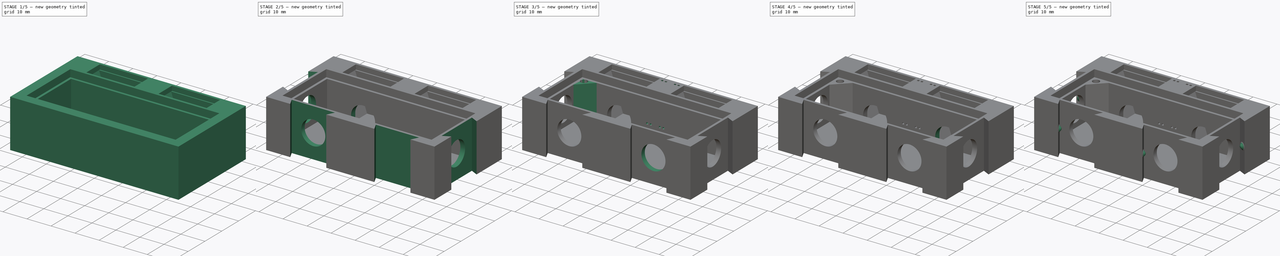
[diagram: build sequence overview — one tinted view per stage of 5, left to right]
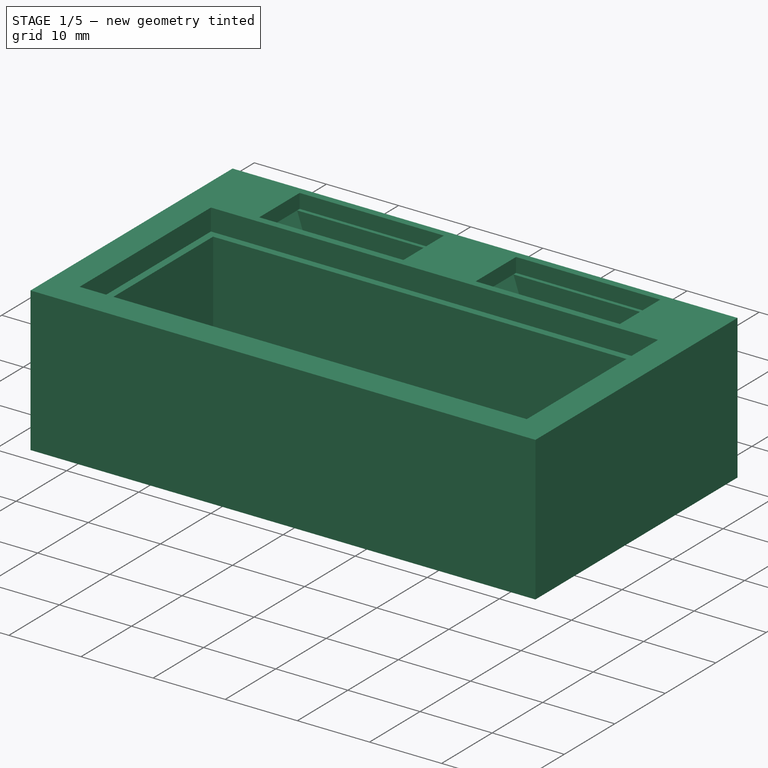
[diagram: stage 1 of 5 — iso view after this stage's code; geometry added in this stage tinted green]
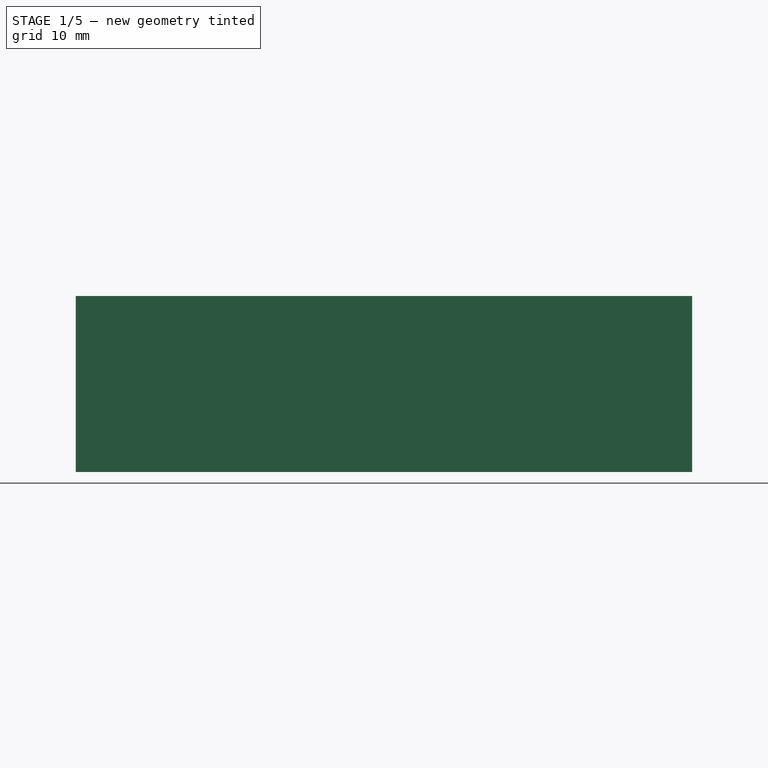
[diagram: stage 1 of 5 — front view after this stage's code; geometry added in this stage tinted green]
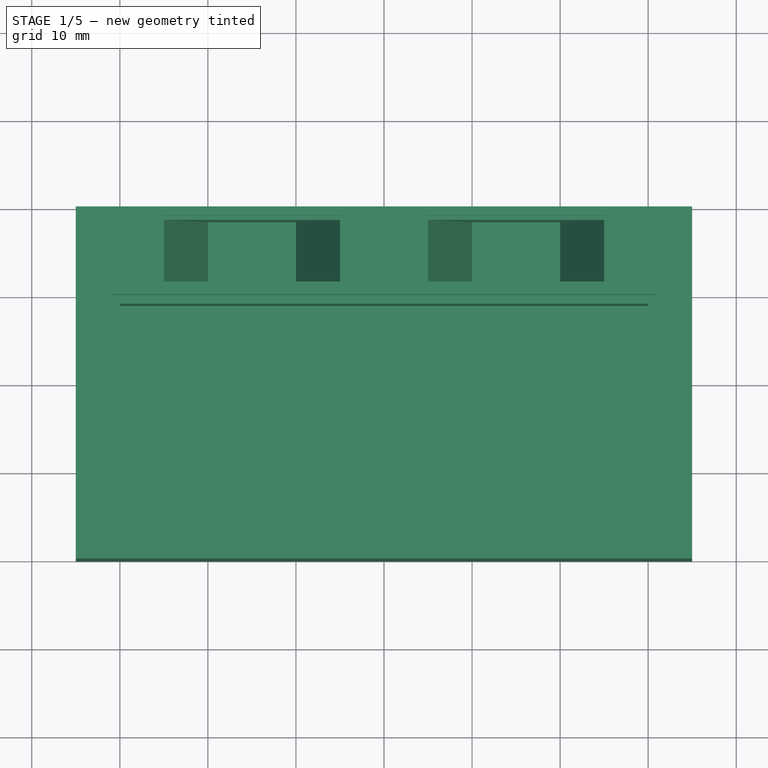
[diagram: stage 1 of 5 — top view after this stage's code; geometry added in this stage tinted green]
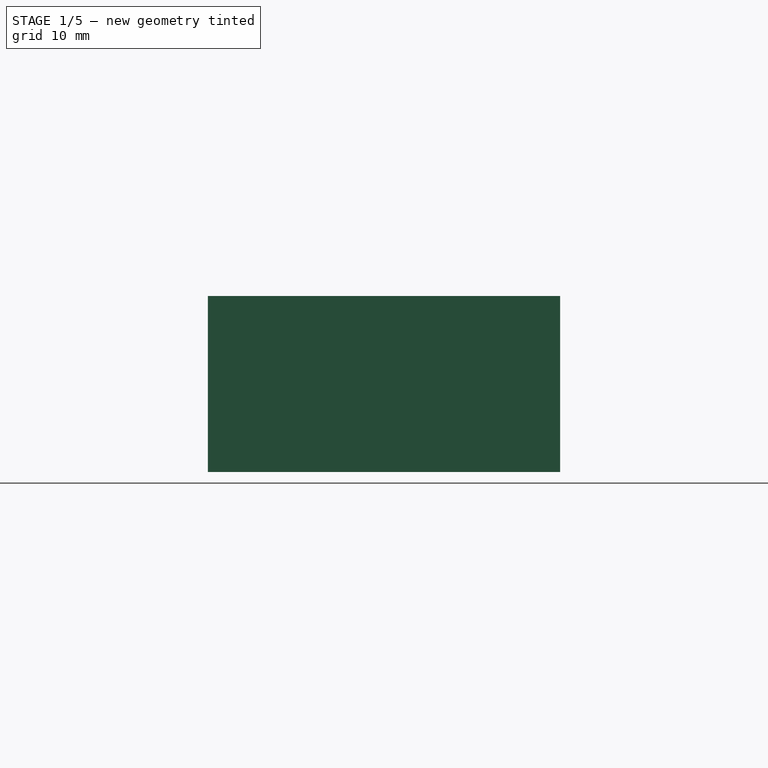
[diagram: stage 1 of 5 — right view after this stage's code; geometry added in this stage tinted green]
FCSTD DOCUMENT  (FreeCAD 0.18R4 (GitTag))
Label: CV2_Portal
License: All rights reserved
LicenseURL: http://en.wikipedia.org/wiki/All_rights_reserved
objects: Sketcher::SketchObject×23, PartDesign::Pocket×11, PartDesign::Mirrored×9, PartDesign::Plane×8, PartDesign::Revolution×4, PartDesign::Pad×3, PartDesign::SubtractiveLoft×2, PartDesign::Groove×1, PartDesign::Body×1
note: 83 computed .brp shape members not serialized (recipe doc carries the construction recipe); baked Part::Feature solids carry a one-line shape summary decoded from their .brp

FEATURE [Sketcher::SketchObject] Sketch
  MapMode = 5
  Support = -> [XY_Plane]
  sketch-geometry (4):
    g0: LineSegment StartX=-35 StartY=20 StartZ=0 EndX=35 EndY=20 EndZ=0
    g1: LineSegment StartX=35 StartY=20 StartZ=0 EndX=35 EndY=-20 EndZ=0
    g2: LineSegment StartX=35 StartY=-20 StartZ=0 EndX=-35 EndY=-20 EndZ=0
    g3: LineSegment StartX=-35 StartY=-20 StartZ=0 EndX=-35 EndY=20 EndZ=0
  constraints (10):
    c: Coincident(g0,g1)
    c: Coincident(g1,g2)
    c: Coincident(g2,g3)
    c: Coincident(g3,g0)
    c: DistanceX(g0,g0) = 70
    c: DistanceY(g3,g3) = 40
    c: Symmetric(g0,g1,g-1)
    c: Symmetric(g1,g2,g-2)
    c: Equal(g2,g0)
    c: Equal(g3,g1)
FEATURE [PartDesign::Pad] Pad  label="Main Body"
  Length = 20
  Length2 = 100
  Profile = -> Sketch
  Type = 0
FEATURE [PartDesign::Plane] DatumPlane
  Length = 80.583
  MapMode = 5
  Placement = pos=(0,0,20) rot=(0,0,1;0rad)
  ResizeMode = 0
  Support = -> [Pad]
  Width = 50.583
FEATURE [Sketcher::SketchObject] Sketch001
  ExternalGeometry = -> [Pad]
  MapMode = 5
  Placement = pos=(0,0,20) rot=(0,0,1;0rad)
  Support = -> [DatumPlane]
  sketch-geometry (4):
    g0: LineSegment StartX=-31 StartY=10 StartZ=0 EndX=31 EndY=10 EndZ=0
    g1: LineSegment StartX=31 StartY=10 StartZ=0 EndX=31 EndY=-16 EndZ=0
    g2: LineSegment StartX=31 StartY=-16 StartZ=0 EndX=-31 EndY=-16 EndZ=0
    g3: LineSegment StartX=-31 StartY=-16 StartZ=0 EndX=-31 EndY=10 EndZ=0
  constraints (11):
    c: Coincident(g0,g1)
    c: Coincident(g1,g2)
    c: Coincident(g2,g3)
    c: Coincident(g3,g0)
    c: Vertical(g1)
    c: Vertical(g3)
    c: DistanceY(g1,g1) = 26
    c: Symmetric(g2,g1,g-2)
    c: DistanceY(g-3,g2) = 4
    c: DistanceX(g-3,g0) = 4
    c: Equal(g3,g1)
FEATURE [PartDesign::Pocket] Pocket  label="Room"
  BaseFeature = -> Pad
  Length = 3
  Length2 = 100
  Profile = -> Sketch001
  Type = 0
FEATURE [Sketcher::SketchObject] Sketch002
  ExternalGeometry = -> [Pocket]
  MapMode = 5
  Placement = pos=(0,0,20) rot=(0,0,1;0rad)
  Support = -> [DatumPlane]
  sketch-geometry (8):
    g0: LineSegment StartX=-25 StartY=19 StartZ=0 EndX=-5 EndY=19 EndZ=0
    g1: LineSegment StartX=-5 StartY=19 StartZ=0 EndX=-5 EndY=11 EndZ=0
    g2: LineSegment StartX=-5 StartY=11 StartZ=0 EndX=-25 EndY=11 EndZ=0
    g3: LineSegment StartX=-25 StartY=11 StartZ=0 EndX=-25 EndY=19 EndZ=0
    g4: LineSegment StartX=5 StartY=19 StartZ=0 EndX=25 EndY=19 EndZ=0
    g5: LineSegment StartX=25 StartY=19 StartZ=0 EndX=25 EndY=11 EndZ=0
    g6: LineSegment StartX=25 StartY=11 StartZ=0 EndX=5 EndY=11 EndZ=0
    g7: LineSegment StartX=5 StartY=11 StartZ=0 EndX=5 EndY=19 EndZ=0
  constraints (23):
    c: Coincident(g0,g1)
    c: Coincident(g1,g2)
    c: Coincident(g2,g3)
    c: Coincident(g3,g0)
    c: Horizontal(g0)
    c: Horizontal(g2)
    c: Vertical(g1)
    c: Vertical(g3)
    c: Coincident(g4,g5)
    c: Coincident(g5,g6)
    c: Coincident(g6,g7)
    c: Coincident(g7,g4)
    c: Horizontal(g4)
    c: Horizontal(g6)
    c: Vertical(g5)
    c: Vertical(g7)
    c: DistanceX(g1,g-1) = 5
    c: Symmetric(g6,g1,g-2)
    c: DistanceX(g2,g2) = 20
    c: DistanceY(g3,g3) = 8
    c: DistanceY(g-3,g2) = 1
    c: Equal(g2,g6)
    c: Equal(g3,g5)
FEATURE [PartDesign::Pocket] Pocket001  label="Feeder Holes"
  BaseFeature = -> Pocket
  Length = 2
  Length2 = 100
  Profile = -> Sketch002
  Type = 0
FEATURE [PartDesign::Plane] DatumPlane001
  Length = 80.583
  MapMode = 5
  Placement = pos=(0,0,17) rot=(0,0,1;0rad)
  ResizeMode = 0
  Support = -> [Pocket001]
  Width = 50.583
FEATURE [Sketcher::SketchObject] Sketch003
  ExternalGeometry = -> [Pocket001]
  MapMode = 5
  Placement = pos=(0,0,17) rot=(0,0,1;0rad)
  Support = -> [DatumPlane001]
  sketch-geometry (4):
    g0: LineSegment StartX=-30 StartY=9 StartZ=0 EndX=30 EndY=9 EndZ=0
    g1: LineSegment StartX=30 StartY=9 StartZ=0 EndX=30 EndY=-15 EndZ=0
    g2: LineSegment StartX=30 StartY=-15 StartZ=0 EndX=-30 EndY=-15 EndZ=0
    g3: LineSegment StartX=-30 StartY=-15 StartZ=0 EndX=-30 EndY=9 EndZ=0
  constraints (12):
    c: Coincident(g0,g1)
    c: Coincident(g1,g2)
    c: Coincident(g2,g3)
    c: Coincident(g3,g0)
    c: Horizontal(g0)
    c: Horizontal(g2)
    c: Vertical(g1)
    c: Vertical(g3)
    c: DistanceY(g-3,g2) = 1
    c: DistanceX(g1,g-4) = 1
    c: DistanceY(g0,g-4) = 1
    c: DistanceX(g-3,g2) = 1
FEATURE [PartDesign::Pocket] Pocket002  label="RoomHole"
  BaseFeature = -> Pocket001
  Length = 14
  Length2 = 100
  Profile = -> Sketch003
  Type = 0
FEATURE [PartDesign::Plane] DatumPlane003
  Length = 80.583
  MapMode = 5
  Placement = pos=(0,0,18) rot=(0,0,1;0rad)
  ResizeMode = 0
  Support = -> [Pocket002]
  Width = 50.583
FEATURE [Sketcher::SketchObject] Sketch004
  ExternalGeometry = -> [Pocket002]
  MapMode = 5
  Placement = pos=(0,0,18) rot=(0,0,1;0rad)
  Support = -> [DatumPlane003]
  sketch-geometry (4):
    g0: LineSegment StartX=-25 StartY=18.5 StartZ=0 EndX=-5 EndY=18.5 EndZ=0
    g1: LineSegment StartX=-5 StartY=18.5 StartZ=0 EndX=-5 EndY=11.5 EndZ=0
    g2: LineSegment StartX=-5 StartY=11.5 StartZ=0 EndX=-25 EndY=11.5 EndZ=0
    g3: LineSegment StartX=-25 StartY=11.5 StartZ=0 EndX=-25 EndY=18.5 EndZ=0
  constraints (12):
    c: Coincident(g0,g1)
    c: Coincident(g1,g2)
    c: Coincident(g2,g3)
    c: Coincident(g3,g0)
    c: Horizontal(g0)
    c: Horizontal(g2)
    c: Vertical(g1)
    c: Vertical(g3)
    c: DistanceY(g-3,g2) = 0.5
    c: DistanceY(g0,g-4) = 0.5
    c: PointOnObject(g1,g-4)
    c: PointOnObject(g2,g-5)
FEATURE [PartDesign::Plane] DatumPlane004
  Length = 80.583
  MapMode = 5
  Placement = pos=(0,0,3) rot=(0,0,1;0rad)
  ResizeMode = 0
  Support = -> [Pocket002]
  Width = 50.583
FEATURE [Sketcher::SketchObject] Sketch005
  ExternalGeometry = -> [Sketch004,Pocket002]
  MapMode = 5
  Placement = pos=(0,0,3) rot=(0,0,1;0rad)
  Support = -> [DatumPlane004]
  sketch-geometry (4):
    g0: LineSegment StartX=-20 StartY=18.5 StartZ=0 EndX=-10 EndY=18.5 EndZ=0
    g1: LineSegment StartX=-10 StartY=18.5 StartZ=0 EndX=-10 EndY=11.5 EndZ=0
    g2: LineSegment StartX=-10 StartY=11.5 StartZ=0 EndX=-20 EndY=11.5 EndZ=0
    g3: LineSegment StartX=-20 StartY=11.5 StartZ=0 EndX=-20 EndY=18.5 EndZ=0
  constraints (12):
    c: Coincident(g0,g1)
    c: Coincident(g1,g2)
    c: Coincident(g2,g3)
    c: Coincident(g3,g0)
    c: Horizontal(g0)
    c: Horizontal(g2)
    c: Vertical(g1)
    c: Vertical(g3)
    c: PointOnObject(g2,g-4)
    c: PointOnObject(g0,g-3)
    c: DistanceX(g1,g-4) = 5
    c: DistanceX(g-4,g2) = 5
FEATURE [PartDesign::SubtractiveLoft] SubtractiveLoft  label="FeederHoleLeft"
  BaseFeature = -> Pocket002
  Closed = false
  Profile = -> Sketch004
  Ruled = false
  Sections = -> [Sketch005]
FEATURE [Sketcher::SketchObject] Sketch006
  ExternalGeometry = -> [SubtractiveLoft]
  MapMode = 5
  Placement = pos=(0,0,18) rot=(0,0,1;0rad)
  Support = -> [DatumPlane003]
  sketch-geometry (4):
    g0: LineSegment StartX=5 StartY=18.5 StartZ=0 EndX=25 EndY=18.5 EndZ=0
    g1: LineSegment StartX=25 StartY=18.5 StartZ=0 EndX=25 EndY=11.5 EndZ=0
    g2: LineSegment StartX=25 StartY=11.5 StartZ=0 EndX=5 EndY=11.5 EndZ=0
    g3: LineSegment StartX=5 StartY=11.5 StartZ=0 EndX=5 EndY=18.5 EndZ=0
  constraints (12):
    c: Coincident(g0,g1)
    c: Coincident(g1,g2)
    c: Coincident(g2,g3)
    c: Coincident(g3,g0)
    c: Horizontal(g0)
    c: Horizontal(g2)
    c: Vertical(g1)
    c: Vertical(g3)
    c: PointOnObject(g2,g-4)
    c: PointOnObject(g0,g-6)
    c: DistanceY(g0,g-5) = 0.5
    c: DistanceY(g-6,g1) = 0.5
FEATURE [Sketcher::SketchObject] Sketch007
  ExternalGeometry = -> [Sketch004,Pocket002,Sketch006]
  MapMode = 5
  Placement = pos=(0,0,3) rot=(0,0,1;0rad)
  Support = -> [DatumPlane004]
  sketch-geometry (4):
    g0: LineSegment StartX=10 StartY=18.5 StartZ=0 EndX=20 EndY=18.5 EndZ=0
    g1: LineSegment StartX=20 StartY=18.5 StartZ=0 EndX=20 EndY=11.5 EndZ=0
    g2: LineSegment StartX=20 StartY=11.5 StartZ=0 EndX=10 EndY=11.5 EndZ=0
    g3: LineSegment StartX=10 StartY=11.5 StartZ=0 EndX=10 EndY=18.5 EndZ=0
  constraints (12):
    c: Coincident(g0,g1)
    c: Coincident(g1,g2)
    c: Coincident(g2,g3)
    c: Coincident(g3,g0)
    c: Horizontal(g0)
    c: Horizontal(g2)
    c: Vertical(g1)
    c: Vertical(g3)
    c: PointOnObject(g0,g-7)
    c: PointOnObject(g1,g-8)
    c: DistanceX(g1,g-8) = 5
    c: DistanceX(g-8,g2) = 5
FEATURE [PartDesign::SubtractiveLoft] SubtractiveLoft001  label="FeederHoleRight"
  BaseFeature = -> SubtractiveLoft
  Closed = false
  Profile = -> Sketch006
  Ruled = false
  Sections = -> [Sketch007]
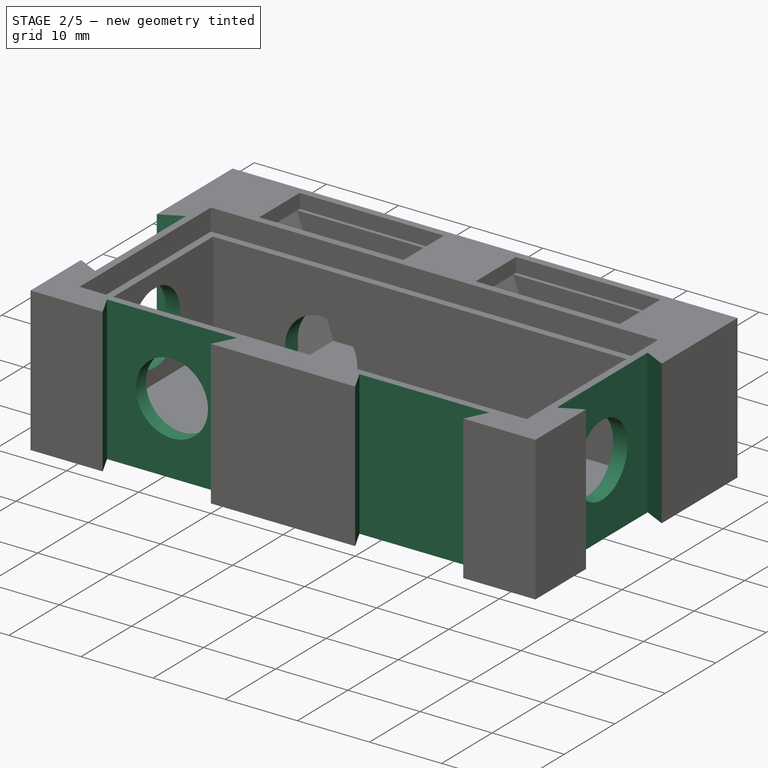
[diagram: stage 2 of 5 — iso view after this stage's code; geometry added in this stage tinted green]
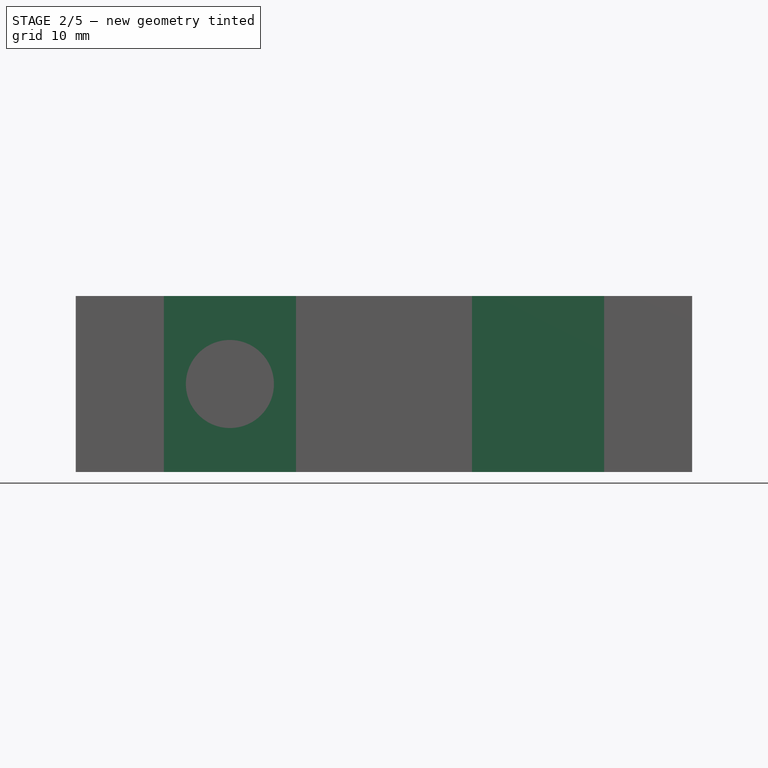
[diagram: stage 2 of 5 — front view after this stage's code; geometry added in this stage tinted green]
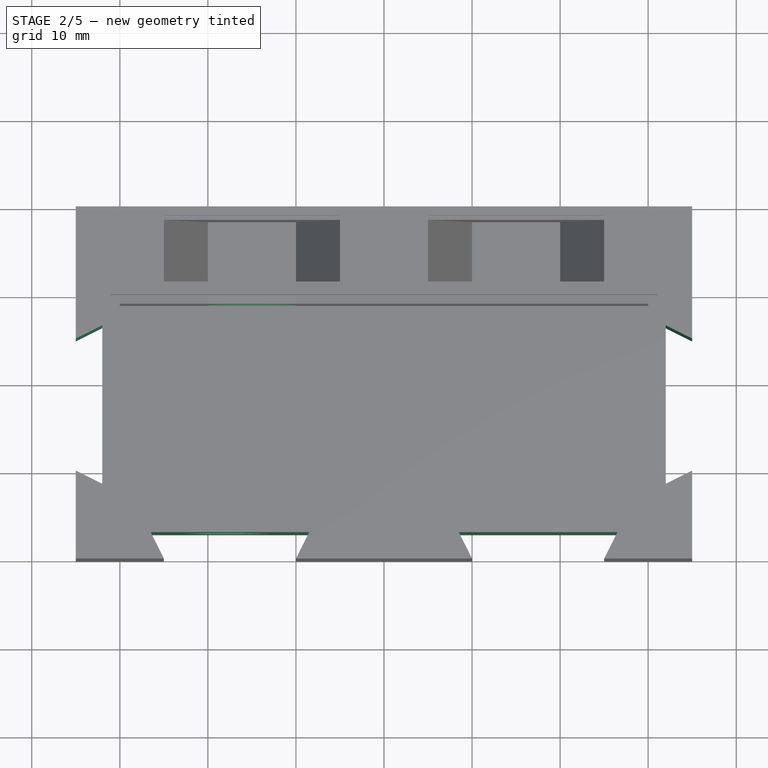
[diagram: stage 2 of 5 — top view after this stage's code; geometry added in this stage tinted green]
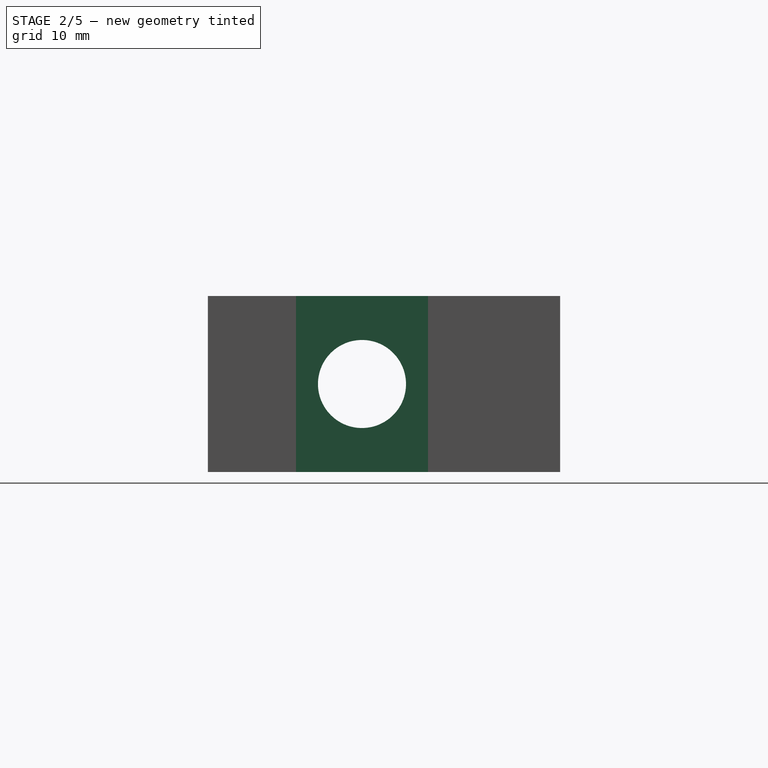
[diagram: stage 2 of 5 — right view after this stage's code; geometry added in this stage tinted green]
FEATURE [Sketcher::SketchObject] Sketch008
  ExternalGeometry = -> [Sketch005]
  MapMode = 5
  Placement = pos=(0,9,0) rot=(1,0,0;1.5708rad)
  Support = -> [SubtractiveLoft001]
  sketch-geometry (4):
    g0: LineSegment StartX=-20 StartY=3 StartZ=0 EndX=-10 EndY=3 EndZ=0
    g1: LineSegment StartX=-20 StartY=3 StartZ=0 EndX=-20 EndY=6 EndZ=0
    g2: LineSegment StartX=-10 StartY=3 StartZ=0 EndX=-10 EndY=6 EndZ=0
    g3: ArcOfCircle CenterX=-15 CenterY=6 CenterZ=0 NormalX=0 NormalY=0 NormalZ=1 AngleXU=0 Radius=5 StartAngle=0 EndAngle=3.14159
  constraints (11):
    c: Coincident(g1,g0)
    c: Vertical(g1)
    c: Coincident(g2,g0)
    c: Vertical(g2)
    c: Coincident(g0,g-3)
    c: Coincident(g-3,g0)
    c: Equal(g1,g2)
    c: DistanceY(g1,g1) = 3
    c: Coincident(g3,g2)
    c: Coincident(g3,g1)
    c: Horizontal(g3,g1)
FEATURE [PartDesign::Pocket] Pocket003
  BaseFeature = -> SubtractiveLoft001
  Length = 3
  Length2 = 100
  Profile = -> Sketch008
  Type = 0
FEATURE [Sketcher::SketchObject] Sketch009
  ExternalGeometry = -> [Pocket003]
  MapMode = 5
  Placement = pos=(0,0,20) rot=(0,0,1;0rad)
  Support = -> [Pocket003]
  sketch-geometry (8):
    g0: LineSegment StartX=-26.5 StartY=-17 StartZ=0 EndX=-8.5 EndY=-17 EndZ=0
    g1: LineSegment StartX=-8.5 StartY=-17 StartZ=0 EndX=-10 EndY=-20 EndZ=0
    g2: LineSegment StartX=-10 StartY=-20 StartZ=0 EndX=-25 EndY=-20 EndZ=0
    g3: LineSegment StartX=-25 StartY=-20 StartZ=0 EndX=-26.5 EndY=-17 EndZ=0
    g4: LineSegment StartX=26.5 StartY=-17 StartZ=0 EndX=8.5 EndY=-17 EndZ=0
    g5: LineSegment StartX=8.5 StartY=-17 StartZ=0 EndX=10 EndY=-20 EndZ=0
    g6: LineSegment StartX=10 StartY=-20 StartZ=0 EndX=25 EndY=-20 EndZ=0
    g7: LineSegment StartX=25 StartY=-20 StartZ=0 EndX=26.5 EndY=-17 EndZ=0
  constraints (26):
    c: Coincident(g0,g1)
    c: Coincident(g1,g2)
    c: Coincident(g2,g3)
    c: Coincident(g3,g0)
    c: Horizontal(g0)
    c: Horizontal(g2)
    c: PointOnObject(g2,g-3)
    c: DistanceX(g2,g2) = 15
    c: DistanceX(g0,g0) = 18
    c: Equal(g3,g1)
    c: DistanceY(g2,g0) = 3
    c: DistanceX(g1,g-1) = 10
    c: Coincident(g4,g5)
    c: Coincident(g5,g6)
    c: Coincident(g6,g7)
    c: Coincident(g7,g4)
    c: Horizontal(g4)
    c: Horizontal(g6)
    c: PointOnObject(g5,g-3)
    c: Equal(g0,g4)
    c: Equal(g2,g6)
    c: DistanceX(g-1,g5) = 10
    c: DistanceX(g6,g-3) = 10
    c: DistanceX(g-3,g2) = 10
    c: Equal(g5,g3)
    c: Equal(g1,g7)
FEATURE [PartDesign::Pocket] Pocket004  label="Connector Pockets"
  BaseFeature = -> Pocket003
  Length = 20
  Length2 = 100
  Profile = -> Sketch009
  Type = 0
FEATURE [Sketcher::SketchObject] Sketch010
  ExternalGeometry = -> [Pocket004]
  MapMode = 5
  Placement = pos=(0,0,20) rot=(0,0,1;0rad)
  Support = -> [Pocket004]
  sketch-geometry (4):
    g0: LineSegment StartX=32 StartY=-11.5 StartZ=0 EndX=35 EndY=-10 EndZ=0
    g1: LineSegment StartX=35 StartY=-10 StartZ=0 EndX=35 EndY=5 EndZ=0
    g2: LineSegment StartX=35 StartY=5 StartZ=0 EndX=32 EndY=6.5 EndZ=0
    g3: LineSegment StartX=32 StartY=6.5 StartZ=0 EndX=32 EndY=-11.5 EndZ=0
  constraints (12):
    c: Coincident(g0,g1)
    c: Coincident(g1,g2)
    c: Coincident(g2,g3)
    c: Coincident(g3,g0)
    c: Vertical(g1)
    c: Vertical(g3)
    c: PointOnObject(g0,g-4)
    c: DistanceY(g0,g1) = 15
    c: DistanceY(g0,g2) = 18
    c: DistanceX(g0,g0) = 3
    c: Equal(g0,g2)
    c: DistanceY(g-4,g0) = 10
FEATURE [PartDesign::Pocket] Pocket005  label="Connector Right"
  BaseFeature = -> Pocket004
  Length = 20
  Length2 = 100
  Profile = -> Sketch010
  Type = 0
FEATURE [PartDesign::Mirrored] Mirrored  label="Connector Left"
  BaseFeature = -> Pocket005
  MirrorPlane = -> Sketch010 [V_Axis]
  Originals = -> [Pocket005]
FEATURE [Sketcher::SketchObject] Sketch011
  MapMode = 5
  Placement = pos=(32,0,0) rot=(0.57735,0.57735,0.57735;2.0944rad)
  Support = -> [Mirrored]
  sketch-geometry (1):
    g0: Circle CenterX=-2.5 CenterY=10 CenterZ=0 NormalX=0 NormalY=0 NormalZ=1 AngleXU=0 Radius=5
  constraints (3):
    c: Diameter(g0) = 10
    c: DistanceY(g-1,g0) = 10
    c: DistanceX(g0,g-1) = 2.5
FEATURE [PartDesign::Pocket] Pocket006  label="ConnectorHole LR"
  BaseFeature = -> Mirrored
  Length = 5
  Length2 = 100
  Profile = -> Sketch011
  Type = 1
FEATURE [Sketcher::SketchObject] Sketch012
  MapMode = 5
  Placement = pos=(0,-17,0) rot=(1,0,0;1.5708rad)
  Support = -> [Pocket006]
  sketch-geometry (1):
    g0: Circle CenterX=-17.5 CenterY=10 CenterZ=0 NormalX=0 NormalY=0 NormalZ=1 AngleXU=0 Radius=5
  constraints (3):
    c: Radius(g0) = 5
    c: DistanceY(g-1,g0) = 10
    c: DistanceX(g0,g-1) = 17.5
FEATURE [PartDesign::Pocket] Pocket007
  BaseFeature = -> Pocket006
  Length = 5
  Length2 = 100
  Profile = -> Sketch012
  Type = 2
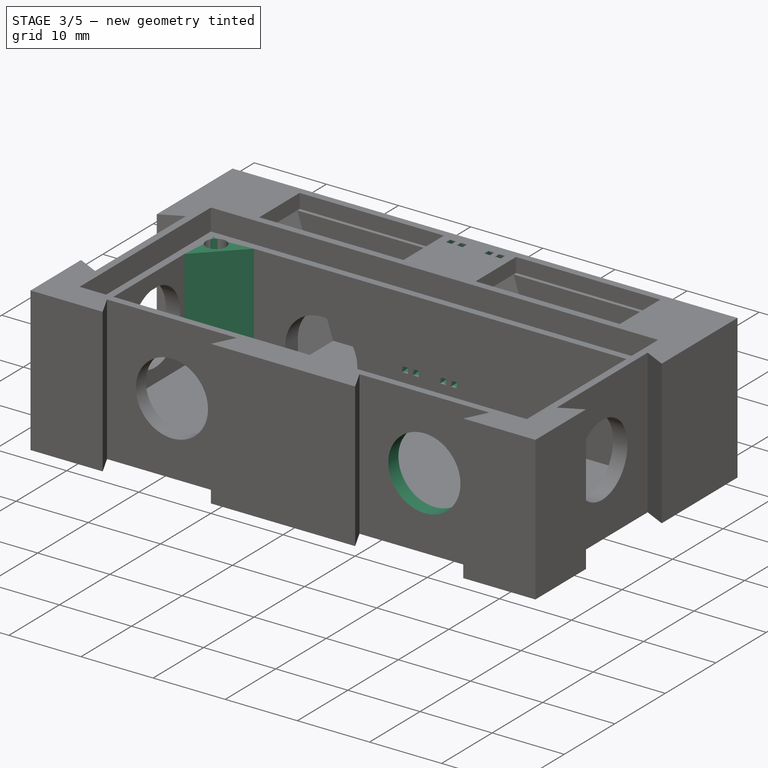
[diagram: stage 3 of 5 — iso view after this stage's code; geometry added in this stage tinted green]
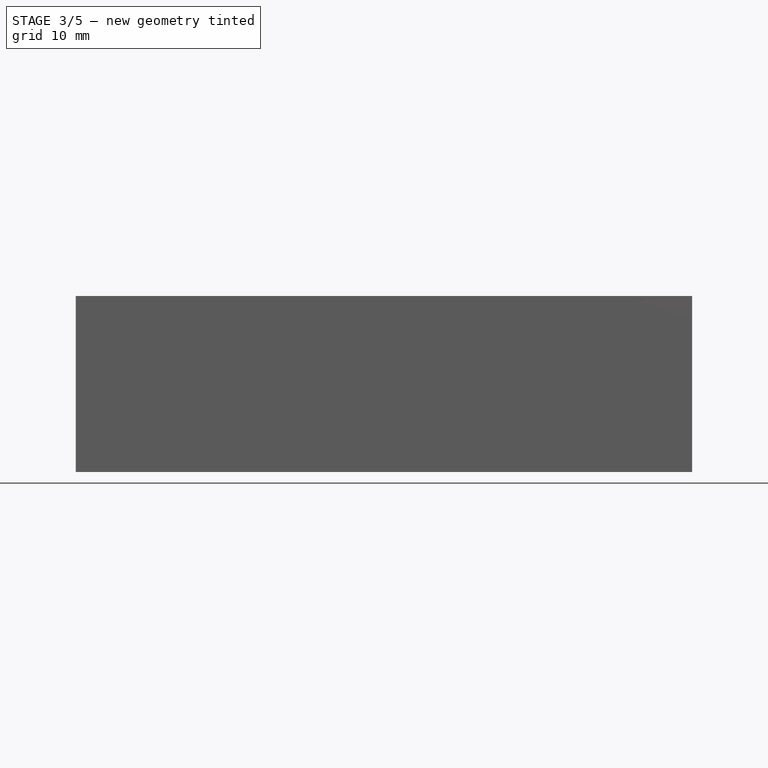
[diagram: stage 3 of 5 — front view after this stage's code; geometry added in this stage tinted green]
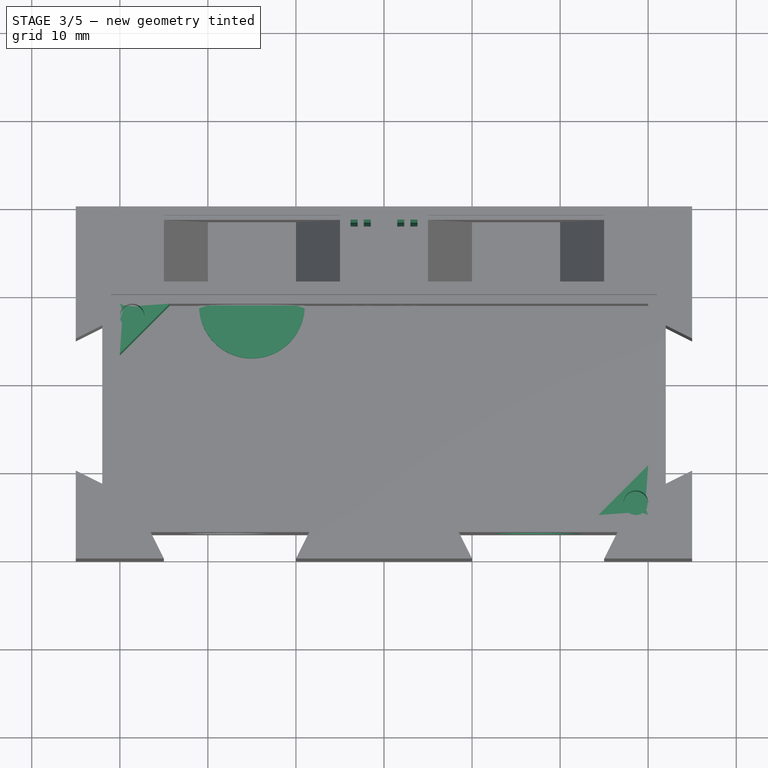
[diagram: stage 3 of 5 — top view after this stage's code; geometry added in this stage tinted green]
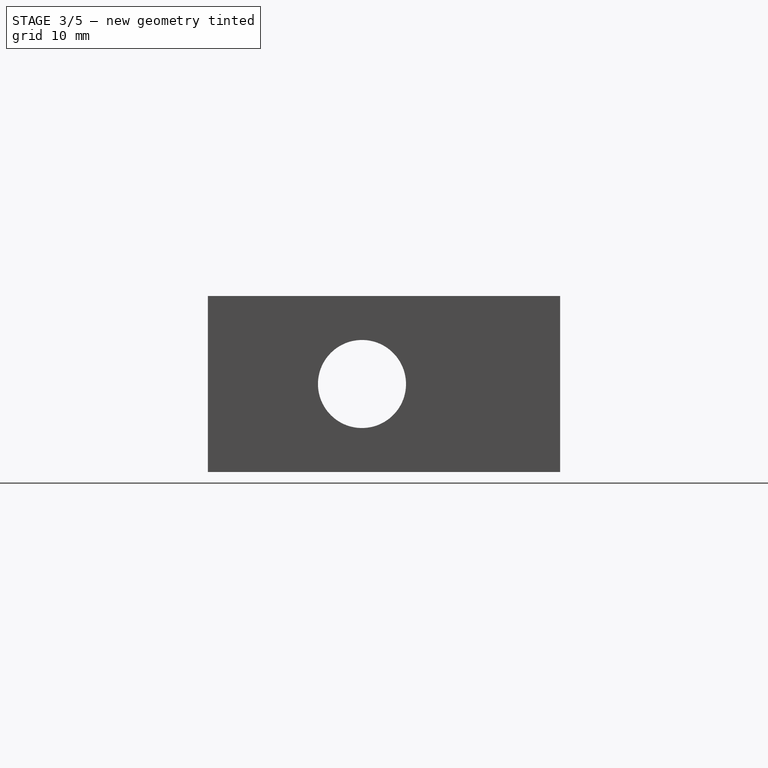
[diagram: stage 3 of 5 — right view after this stage's code; geometry added in this stage tinted green]
FEATURE [Sketcher::SketchObject] Sketch013
  MapMode = 5
  Placement = pos=(0,-17,0) rot=(1,0,0;1.5708rad)
  Support = -> [Pocket007]
  sketch-geometry (1):
    g0: Circle CenterX=17.5 CenterY=10 CenterZ=0 NormalX=0 NormalY=0 NormalZ=1 AngleXU=0 Radius=5
  constraints (3):
    c: Radius(g0) = 5
    c: DistanceY(g-1,g0) = 10
    c: DistanceX(g0) = 17.5
FEATURE [PartDesign::Pocket] Pocket008
  BaseFeature = -> Pocket007
  Length = 5
  Length2 = 100
  Profile = -> Sketch013
  Type = 2
FEATURE [Sketcher::SketchObject] Sketch014
  ExternalGeometry = -> [Pocket008]
  MapMode = 5
  Placement = pos=(0,0,3) rot=(0,0,1;0rad)
  Support = -> [Pocket008]
  sketch-geometry (6):
    g0: LineSegment StartX=-30 StartY=9 StartZ=0 EndX=-24.3431 EndY=9 EndZ=0
    g1: LineSegment StartX=-24.3431 StartY=9 StartZ=0 EndX=-30 EndY=3.34315 EndZ=0
    g2: LineSegment StartX=-30 StartY=3.34315 StartZ=0 EndX=-30 EndY=9 EndZ=0
    g3: LineSegment StartX=30 StartY=-9.34315 StartZ=0 EndX=24.3431 EndY=-15 EndZ=0
    g4: LineSegment StartX=24.3431 StartY=-15 StartZ=0 EndX=30 EndY=-15 EndZ=0
    g5: LineSegment StartX=30 StartY=-15 StartZ=0 EndX=30 EndY=-9.34315 EndZ=0
  constraints (16):
    c: Coincident(g0,g2)
    c: Coincident(g1,g2)
    c: Coincident(g1,g0)
    c: Perpendicular(g2,g0)
    c: Angle(g1,g2) = 0.785398
    c: Distance(g1) = 8
    c: Coincident(g3,g4)
    c: Coincident(g4,g5)
    c: Coincident(g5,g3)
    c: Perpendicular(g5,g4)
    c: Distance(g3) = 8
    c: Angle(g4,g3) = 0.785398
    c: Coincident(g0,g-3)
    c: PointOnObject(g1,g-3)
    c: Coincident(g4,g-4)
    c: PointOnObject(g3,g-4)
FEATURE [PartDesign::Pad] Pad001  label="BoreHoleSupport"
  BaseFeature = -> Pocket008
  Length = 14
  Length2 = 100
  Profile = -> Sketch014
  Type = 0
FEATURE [Sketcher::SketchObject] Sketch015
  ExternalGeometry = -> [Pad001]
  MapMode = 5
  Placement = pos=(0,0,17) rot=(0,0,1;0rad)
  Support = -> [DatumPlane001]
  sketch-geometry (2):
    g0: Circle CenterX=-28.6 CenterY=7.6 CenterZ=0 NormalX=0 NormalY=0 NormalZ=1 AngleXU=0 Radius=1.4
    g1: Circle CenterX=28.6 CenterY=-13.6 CenterZ=0 NormalX=0 NormalY=0 NormalZ=1 AngleXU=0 Radius=1.4
  constraints (6):
    c: Equal(g0,g1)
    c: Radius(g0) = 1.4
    c: Tangent(g1,g-6)
    c: Tangent(g-5,g1)
    c: Tangent(g0,g-3)
    c: Tangent(g0,g-4)
FEATURE [PartDesign::Pocket] Pocket009  label="Boreholes"
  BaseFeature = -> Pad001
  Length = 8
  Length2 = 100
  Profile = -> Sketch015
  Type = 0
FEATURE [Sketcher::SketchObject] Sketch016
  MapMode = 5
  Placement = pos=(0,0,20) rot=(0,0,1;0rad)
  Support = -> [Pocket009]
  sketch-geometry (8):
    g0: LineSegment StartX=-3.8 StartY=18.5 StartZ=0 EndX=-3 EndY=18.5 EndZ=0
    g1: LineSegment StartX=-3 StartY=18.5 StartZ=0 EndX=-3 EndY=17.7 EndZ=0
    g2: LineSegment StartX=-3 StartY=17.7 StartZ=0 EndX=-3.8 EndY=17.7 EndZ=0
    g3: LineSegment StartX=-3.8 StartY=17.7 StartZ=0 EndX=-3.8 EndY=18.5 EndZ=0
    g4: LineSegment StartX=-2.3 StartY=18.5 StartZ=0 EndX=-1.5 EndY=18.5 EndZ=0
    g5: LineSegment StartX=-1.5 StartY=18.5 StartZ=0 EndX=-1.5 EndY=17.7 EndZ=0
    g6: LineSegment StartX=-1.5 StartY=17.7 StartZ=0 EndX=-2.3 EndY=17.7 EndZ=0
    g7: LineSegment StartX=-2.3 StartY=17.7 StartZ=0 EndX=-2.3 EndY=18.5 EndZ=0
  constraints (24):
    c: Coincident(g0,g1)
    c: Coincident(g1,g2)
    c: Coincident(g2,g3)
    c: Coincident(g3,g0)
    c: Horizontal(g0)
    c: Horizontal(g2)
    c: Vertical(g1)
    c: Vertical(g3)
    c: Coincident(g4,g5)
    c: Coincident(g5,g6)
    c: Coincident(g6,g7)
    c: Coincident(g7,g4)
    c: Horizontal(g4)
    c: Vertical(g5)
    c: DistanceX(g2,g1) = 0.8
    c: DistanceY(g1,g0) = 0.8
    c: DistanceX(g1,g-1) = 3
    c: Equal(g3,g7)
    c: Equal(g2,g6)
    c: Equal(g5,g1)
    c: Equal(g0,g4)
    c: DistanceX(g5,g-1) = 1.5
    c: Horizontal(g1,g6)
    c: DistanceY(g2) = 17.7
FEATURE [PartDesign::Groove] Groove  label="BreathingHole"
  Angle = 230
  Axis = (1,0,0)
  Base = (-30,9,17)
  BaseFeature = -> Pocket009
  Midplane = true
  Profile = -> Sketch016
  ReferenceAxis = -> Pocket009 [Edge119]
  Reversed = true
FEATURE [PartDesign::Mirrored] Mirrored001  label="BH_Mirror"
  BaseFeature = -> Groove
  MirrorPlane = -> Sketch016 [V_Axis]
  Originals = -> [Groove]
FEATURE [Sketcher::SketchObject] Sketch017
  MapMode = 5
  Placement = pos=(0,0,3) rot=(0,0,1;0rad)
  Support = -> [Mirrored001]
  sketch-geometry (2):
    g0: ArcOfCircle CenterX=-15 CenterY=9 CenterZ=0 NormalX=0 NormalY=0 NormalZ=1 AngleXU=0 Radius=6 StartAngle=3.14159 EndAngle=6.28319
    g1: LineSegment StartX=-21 StartY=9 StartZ=0 EndX=-9 EndY=9 EndZ=0
  constraints (7):
    c: Coincident(g1,g0)
    c: Coincident(g1,g0)
    c: Horizontal(g0,g0)
    c: DistanceX(g0,g0) = 12
    c: Horizontal(g1)
    c: DistanceX(g0,g-1) = 15
    c: DistanceY(g0) = 9
FEATURE [PartDesign::Pad] Pad002  label="FoodTray"
  BaseFeature = -> Mirrored001
  Length = 2
  Length2 = 100
  Profile = -> Sketch017
  Type = 0
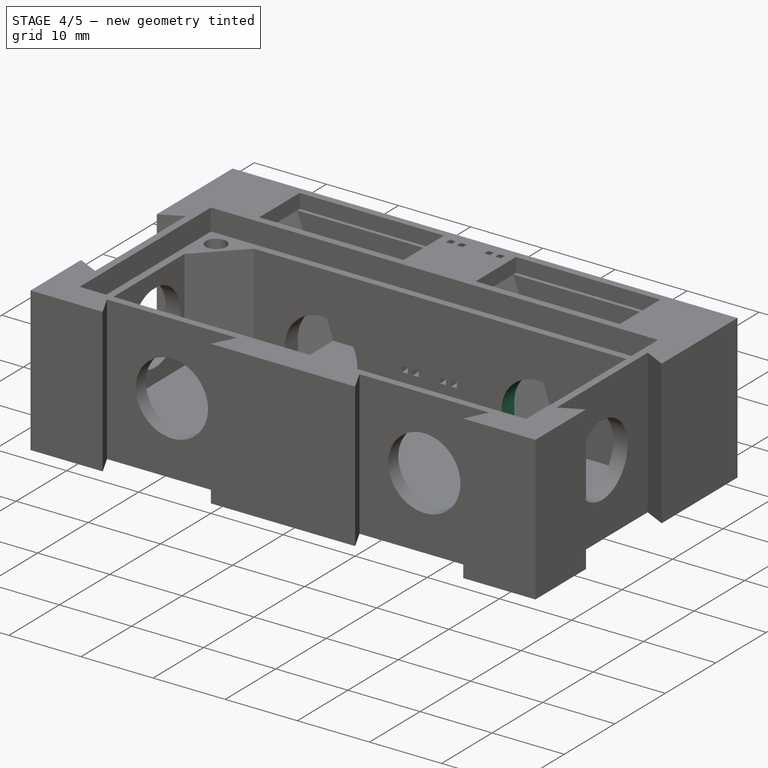
[diagram: stage 4 of 5 — iso view after this stage's code; geometry added in this stage tinted green]
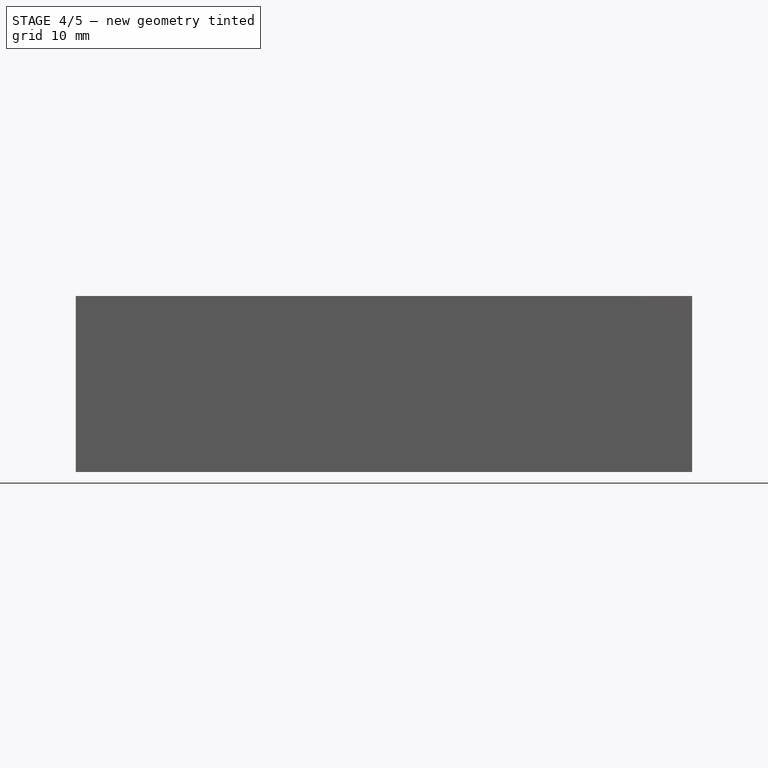
[diagram: stage 4 of 5 — front view after this stage's code; geometry added in this stage tinted green]
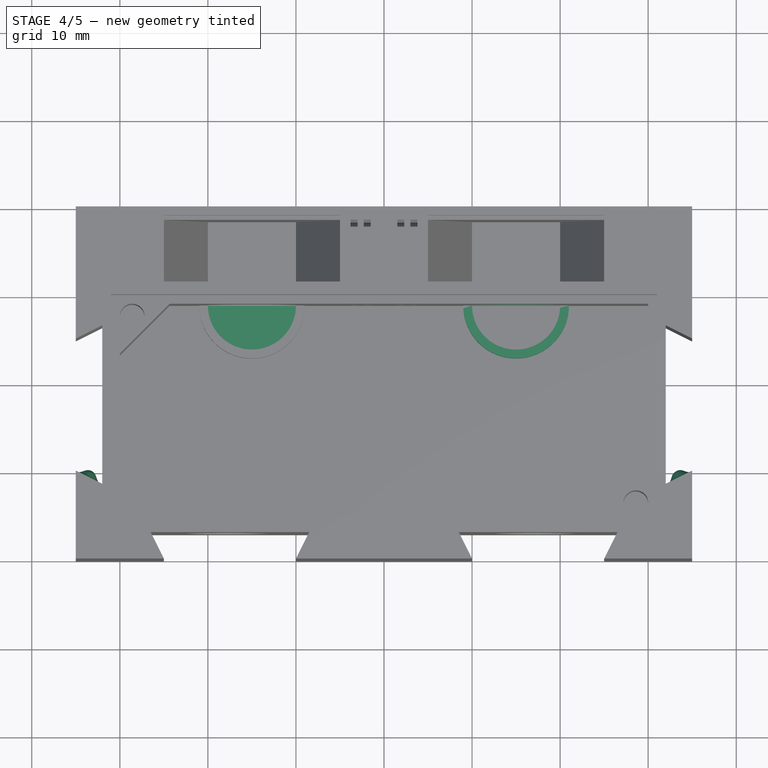
[diagram: stage 4 of 5 — top view after this stage's code; geometry added in this stage tinted green]
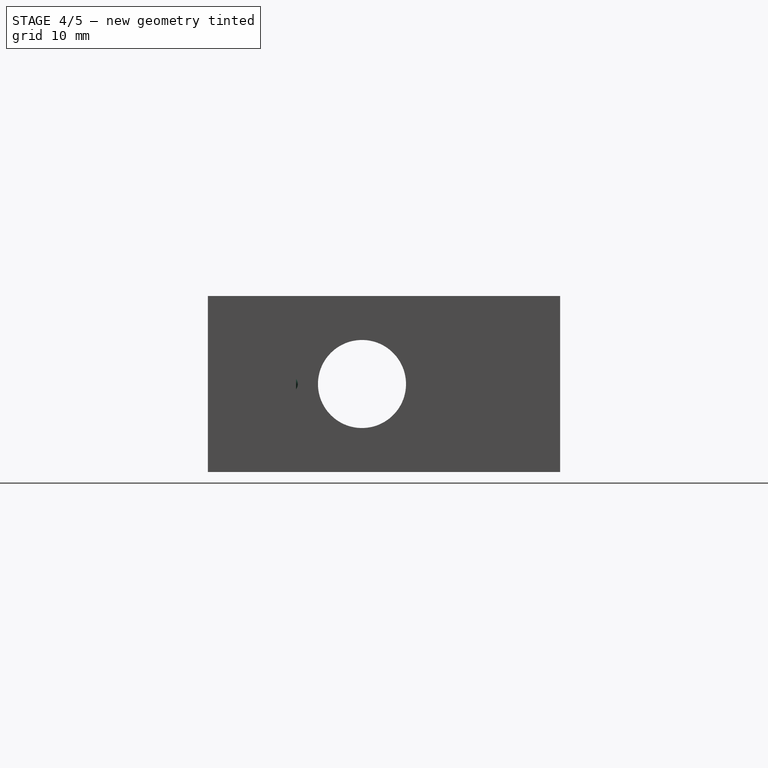
[diagram: stage 4 of 5 — right view after this stage's code; geometry added in this stage tinted green]
FEATURE [PartDesign::Mirrored] Mirrored002  label="FT_Mirror"
  BaseFeature = -> Pad002
  MirrorPlane = -> Sketch017 [V_Axis]
  Originals = -> [Pad002]
FEATURE [PartDesign::Mirrored] Mirrored004
  BaseFeature = -> Mirrored002
  MirrorPlane = -> Sketch008 [V_Axis]
  Originals = -> [Pocket003]
FEATURE [Sketcher::SketchObject] Sketch018
  MapMode = 5
  Placement = pos=(0,0,3) rot=(0,0,1;0rad)
  Support = -> [Mirrored004]
  sketch-geometry (2):
    g0: LineSegment StartX=-20 StartY=9 StartZ=0 EndX=-10 EndY=9 EndZ=0
    g1: ArcOfCircle CenterX=-15 CenterY=9 CenterZ=0 NormalX=0 NormalY=0 NormalZ=1 AngleXU=0 Radius=5 StartAngle=3.14159 EndAngle=6.28319
FEATURE [PartDesign::Pocket] Pocket010  label="FT_Cut"
  BaseFeature = -> Mirrored004
  Length = 2
  Length2 = 100
  Profile = -> Sketch018
  Reversed = true
  Type = 0
FEATURE [PartDesign::Mirrored] Mirrored005  label="Ft_cut_mirror"
  BaseFeature = -> Pocket010
  MirrorPlane = -> Sketch018 [V_Axis]
  Originals = -> [Pocket010]
FEATURE [PartDesign::Plane] DatumPlane005
  AttachmentOffset = pos=(0,10,0) rot=(1,0,0;1.5708rad)
  Length = 95.1954
  MapMode = 5
  Placement = pos=(-11,-22,10) rot=(0.229753,0.973249,0;3.14159rad)
  ResizeMode = 0
  Support = -> [Mirrored005]
  Width = 81.779
FEATURE [Sketcher::SketchObject] Sketch019
  ExternalGeometry = -> [Mirrored005]
  MapMode = 5
  Placement = pos=(-11,-22,10) rot=(0.229753,0.973249,0;3.14159rad)
  Support = -> [DatumPlane005]
  sketch-geometry (9):
    g0: LineSegment StartX=25.2787 StartY=1.42e-14 StartZ=0 EndX=26.7787 EndY=1.42e-14 EndZ=0
    g1-g4: Circle [constr] x4 (B-spline internal-alignment scaffolding for g5; pole/knot coordinates omitted)
    g5: BSplineCurve PolesCount=4 KnotsCount=2 Degree=3 IsPeriodic=0
    g6: GeomPoint [constr] X=26.7787 Y=1.42e-14 Z=0
    g7: GeomPoint [constr] X=25.2787 Y=0.9 Z=0
    g8: LineSegment StartX=25.2787 StartY=0.9 StartZ=0 EndX=25.2787 EndY=1.42e-14 EndZ=0
  constraints (20):
    c: Horizontal(g0)
    c: Coincident(g5,g0)
    c: Radius(g1) = 0.1
    c: Equal(g1,g2)
    c: Equal(g1,g3)
    c: Equal(g1,g4)
    c: InternalAlignment(g1-g4 -> g5) x4
    c: InternalAlignment(g6,g5)
    c: InternalAlignment(g7,g5)
    c: Coincident(g8,g5)
    c: Coincident(g8,g0)
    c: Vertical(g8)
    c: DistanceX(g0,g0) = 1.5
    c: DistanceY(g8,g8) = 0.9
    c: Horizontal(g5,g3)
    c: Vertical(g3,g2)
    c: DistanceY(g2,g3) = 0.6
    c: DistanceX(g0,g2) = 0.75
    c: DistanceX(g-3,g0) = 1.8
    c: DistanceY(g-3,g0) = 0
FEATURE [PartDesign::Revolution] Revolution  label="LR_Bottom_hill"
  Angle = 360
  Axis = (-0.447214,-0.894427,0)
  Base = (-33.2075,-9.89003,10)
  BaseFeature = -> Mirrored005
  Profile = -> Sketch019
  ReferenceAxis = -> Sketch019 [Edge3]
FEATURE [PartDesign::Mirrored] Mirrored006
  BaseFeature = -> Revolution
  MirrorPlane = -> YZ_Plane
  Originals = -> [Revolution]
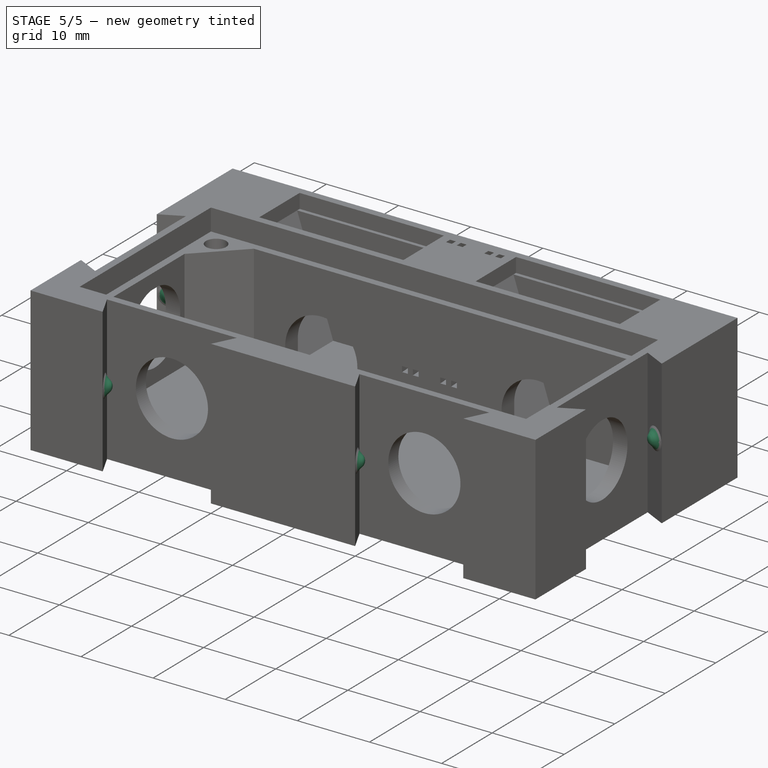
[diagram: stage 5 of 5 — iso view after this stage's code; geometry added in this stage tinted green]
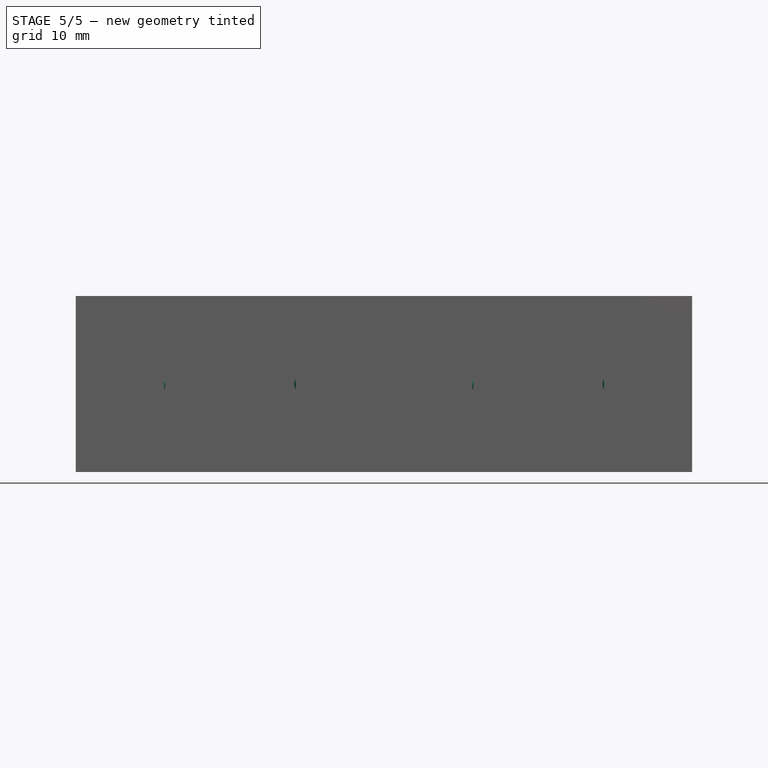
[diagram: stage 5 of 5 — front view after this stage's code; geometry added in this stage tinted green]
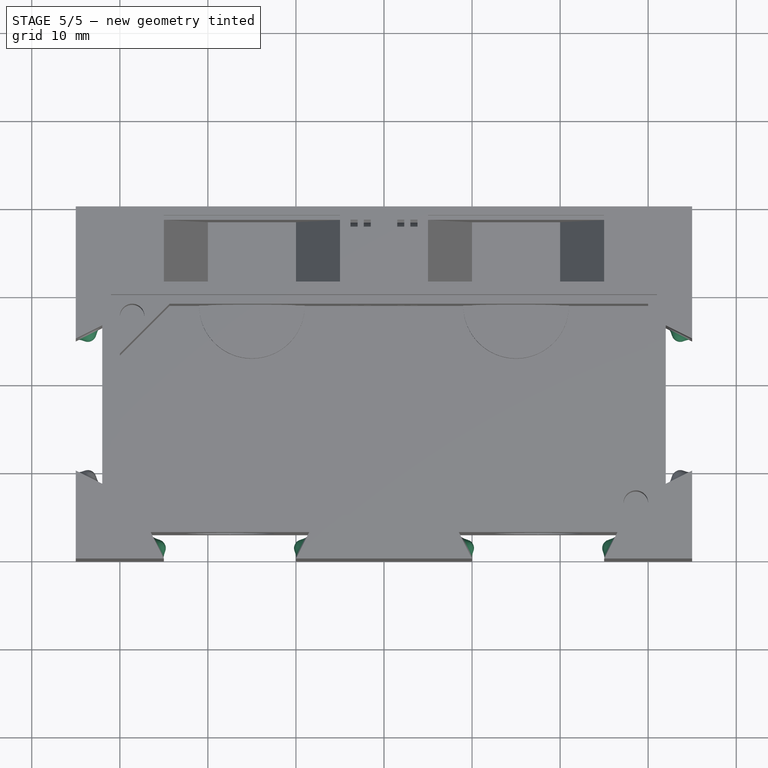
[diagram: stage 5 of 5 — top view after this stage's code; geometry added in this stage tinted green]
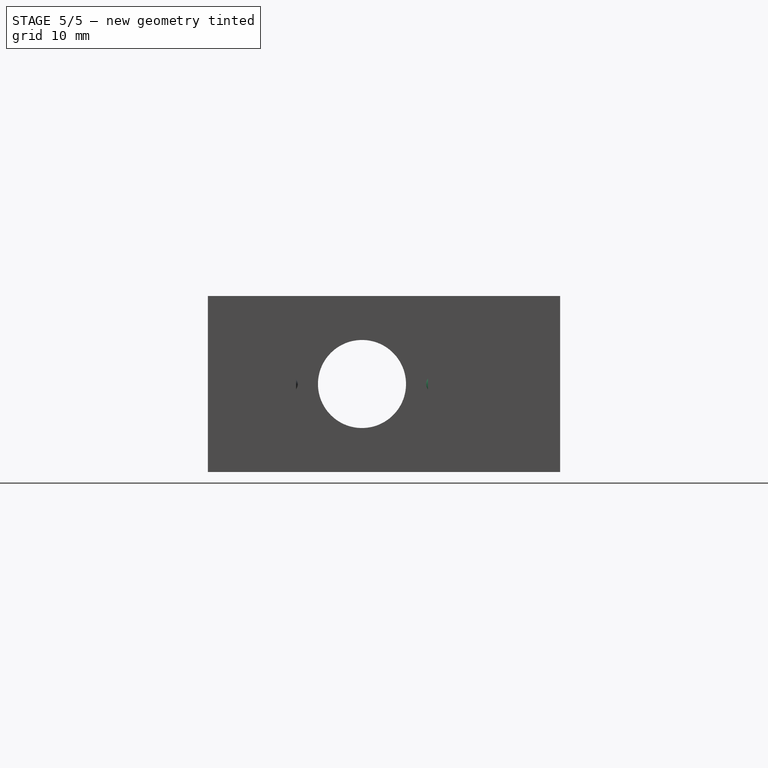
[diagram: stage 5 of 5 — right view after this stage's code; geometry added in this stage tinted green]
FEATURE [PartDesign::Plane] DatumPlane006
  AttachmentOffset = pos=(0,10,0) rot=(1,0,0;1.5708rad)
  Length = 95.1954
  MapMode = 5
  Placement = pos=(-9,18,10) rot=(0.973249,0.229753,0;3.14159rad)
  ResizeMode = 0
  Support = -> [Mirrored006]
  Width = 81.779
FEATURE [Sketcher::SketchObject] Sketch020
  ExternalGeometry = -> [Mirrored006]
  MapMode = 5
  Placement = pos=(-9,18,10) rot=(0.973249,0.229753,0;3.14159rad)
  Support = -> [DatumPlane006]
  sketch-geometry (9):
    g0: LineSegment StartX=-29.0148 StartY=1.07e-14 StartZ=0 EndX=-27.5148 EndY=1.07e-14 EndZ=0
    g1: LineSegment StartX=-27.5148 StartY=1.07e-14 StartZ=0 EndX=-27.5148 EndY=0.9 EndZ=0
    g2-g5: Circle [constr] x4 (B-spline internal-alignment scaffolding for g6; pole/knot coordinates omitted)
    g6: BSplineCurve PolesCount=4 KnotsCount=2 Degree=3 IsPeriodic=0
    g7: GeomPoint [constr] X=-29.0148 Y=1.07e-14 Z=0
    g8: GeomPoint [constr] X=-27.5148 Y=0.9 Z=0
  constraints (20):
    c: Horizontal(g0)
    c: Coincident(g0,g1)
    c: Vertical(g1)
    c: Coincident(g6,g0)
    c: Radius(g2) = 0.1
    c: Equal(g2,g3)
    c: Equal(g2,g4)
    c: Equal(g2,g5)
    c: Coincident(g6,g1)
    c: InternalAlignment(g2-g5 -> g6) x4
    c: InternalAlignment(g7,g6)
    c: InternalAlignment(g8,g6)
    c: Vertical(g4,g3)
    c: Horizontal(g4,g1)
    c: DistanceX(g0,g0) = 1.5
    c: DistanceY(g1,g1) = 0.9
    c: DistanceY(g3,g4) = 0.6
    c: DistanceX(g3,g0) = 0.75
    c: DistanceX(g0,g-3) = 1.8
    c: DistanceY(g-3,g0) = 0
FEATURE [PartDesign::Revolution] Revolution001  label="LR_top_hill"
  Angle = 360
  Axis = (0.447214,-0.894427,0)
  Base = (-33.61,5.69502,10)
  BaseFeature = -> Mirrored006
  Profile = -> Sketch020
  ReferenceAxis = -> Sketch020 [Edge2]
FEATURE [PartDesign::Mirrored] Mirrored007
  BaseFeature = -> Revolution001
  MirrorPlane = -> YZ_Plane
  Originals = -> [Revolution001]
FEATURE [PartDesign::Plane] DatumPlane007
  AttachmentOffset = pos=(0,10,0) rot=(1,0,0;1.5708rad)
  Length = 81.779
  MapMode = 5
  Placement = pos=(1.7e-15,-1.1e-15,10) rot=(-0.525731,0.850651,0;3.14159rad)
  ResizeMode = 0
  Support = -> [Mirrored007]
  Width = 95.1954
FEATURE [Sketcher::SketchObject] Sketch021
  ExternalGeometry = -> [Mirrored007]
  MapMode = 5
  Placement = pos=(1.7e-15,-1.1e-15,10) rot=(-0.525731,0.850651,0;3.14159rad)
  Support = -> [DatumPlane007]
  sketch-geometry (9):
    g0: LineSegment StartX=22.3066 StartY=7.3e-15 StartZ=0 EndX=20.8066 EndY=7.3e-15 EndZ=0
    g1: LineSegment StartX=20.8066 StartY=7.3e-15 StartZ=0 EndX=20.8066 EndY=0.9 EndZ=0
    g2-g5: Circle [constr] x4 (B-spline internal-alignment scaffolding for g6; pole/knot coordinates omitted)
    g6: BSplineCurve PolesCount=4 KnotsCount=2 Degree=3 IsPeriodic=0
    g7: GeomPoint [constr] X=20.8066 Y=0.9 Z=0
    g8: GeomPoint [constr] X=22.3066 Y=7.3e-15 Z=0
  constraints (20):
    c: Horizontal(g0)
    c: Coincident(g0,g1)
    c: Vertical(g1)
    c: Coincident(g6,g1)
    c: Radius(g2) = 0.1
    c: Equal(g2,g3)
    c: Equal(g2,g4)
    c: Equal(g2,g5)
    c: Coincident(g6,g0)
    c: InternalAlignment(g2-g5 -> g6) x4
    c: InternalAlignment(g7,g6)
    c: InternalAlignment(g8,g6)
    c: Vertical(g4,g3)
    c: Horizontal(g3,g1)
    c: DistanceX(g0,g0) = 1.5
    c: DistanceY(g1,g1) = 0.9
    c: DistanceX(g-3,g0) = 1.8
    c: DistanceY(g4,g3) = 0.6
    c: DistanceX(g1,g3) = 0.75
    c: DistanceY(g-3,g0) = 0
FEATURE [PartDesign::Revolution] Revolution002  label="Bottom_Connector_Hill"
  Angle = 360
  Axis = (-0.894427,0.447214,1e-16)
  Base = (-9.30498,-18.61,10)
  BaseFeature = -> Mirrored007
  Profile = -> Sketch021
  ReferenceAxis = -> Sketch021 [Edge2]
  Reversed = true
FEATURE [PartDesign::Mirrored] Mirrored008
  BaseFeature = -> Revolution002
  MirrorPlane = -> YZ_Plane
  Originals = -> [Revolution002]
FEATURE [PartDesign::Plane] DatumPlane008
  AttachmentOffset = pos=(0,10,0) rot=(1,0,0;1.5708rad)
  Length = 81.779
  MapMode = 5
  Placement = pos=(-28,-14,10) rot=(0.525731,0.850651,0;3.14159rad)
  ResizeMode = 0
  Support = -> [Mirrored008]
  Width = 95.1954
FEATURE [Sketcher::SketchObject] Sketch022
  ExternalGeometry = -> [Mirrored008]
  MapMode = 5
  Placement = pos=(-28,-14,10) rot=(0.525731,0.850651,0;3.14159rad)
  Support = -> [DatumPlane008]
  sketch-geometry (9):
    g0: LineSegment StartX=-6.6541 StartY=1.42e-14 StartZ=0 EndX=-5.1541 EndY=1.42e-14 EndZ=0
    g1: LineSegment StartX=-5.1541 StartY=1.42e-14 StartZ=0 EndX=-5.1541 EndY=0.9 EndZ=0
    g2-g5: Circle [constr] x4 (B-spline internal-alignment scaffolding for g6; pole/knot coordinates omitted)
    g6: BSplineCurve PolesCount=4 KnotsCount=2 Degree=3 IsPeriodic=0
    g7: GeomPoint [constr] X=-6.6541 Y=1.42e-14 Z=0
    g8: GeomPoint [constr] X=-5.1541 Y=0.9 Z=0
  constraints (20):
    c: Horizontal(g0)
    c: Coincident(g0,g1)
    c: Vertical(g1)
    c: DistanceX(g0,g0) = 1.5
    c: DistanceY(g1,g1) = 0.9
    c: Coincident(g6,g0)
    c: Radius(g2) = 0.09
    c: Equal(g2,g3)
    c: Equal(g2,g4)
    c: Equal(g2,g5)
    c: Coincident(g6,g1)
    c: InternalAlignment(g2-g5 -> g6) x4
    c: InternalAlignment(g7,g6)
    c: InternalAlignment(g8,g6)
    c: Vertical(g4,g3)
    c: Horizontal(g4,g1)
    c: DistanceY(g3,g4) = 0.6
    c: DistanceX(g4,g1) = 0.75
    c: DistanceX(g0,g-3) = 1.8
    c: DistanceY(g-3,g0) = 0
FEATURE [PartDesign::Revolution] Revolution003  label="Bottom_Connector_Hill001"
  Angle = 360
  Axis = (0.894427,0.447214,1e-16)
  Base = (-25.695,-18.61,10)
  BaseFeature = -> Mirrored008
  Profile = -> Sketch022
  ReferenceAxis = -> Sketch022 [Edge2]
FEATURE [PartDesign::Mirrored] Mirrored009
  BaseFeature = -> Revolution003
  MirrorPlane = -> YZ_Plane
  Originals = -> [Revolution003]
FEATURE [PartDesign::Body] Body  label="OF Portal"
  Group = -> [Sketch,Pad,DatumPlane,Sketch001,Pocket,Sketch002,Pocket001,DatumPlane001,Sketch003,Pocket002,DatumPlane003,Sketch004,DatumPlane004,Sketch005,SubtractiveLoft,Sketch006,Sketch007,SubtractiveLoft001,Sketch008,Pocket003,Sketch009,Pocket004,Sketch010,Pocket005,Mirrored,Sketch011,Pocket006,Sketch012,Pocket007,Sketch013,Pocket008,Sketch014,Pad001,Sketch015,Pocket009,Sketch016,Groove,Mirrored001,+23 more]
  Origin = -> Origin
  Tip = -> Mirrored009
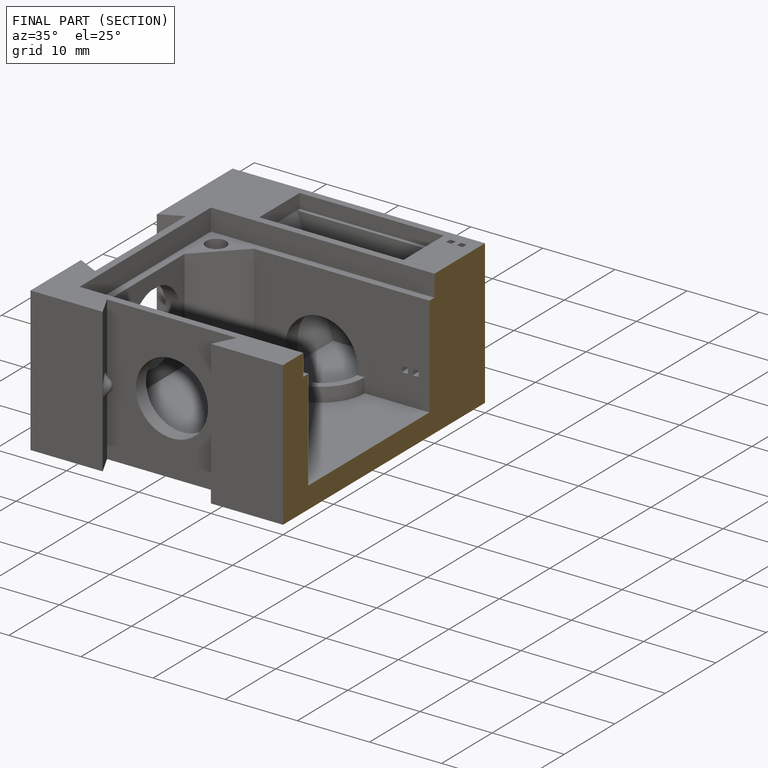
[diagram: finished part — half-section view (interior)]
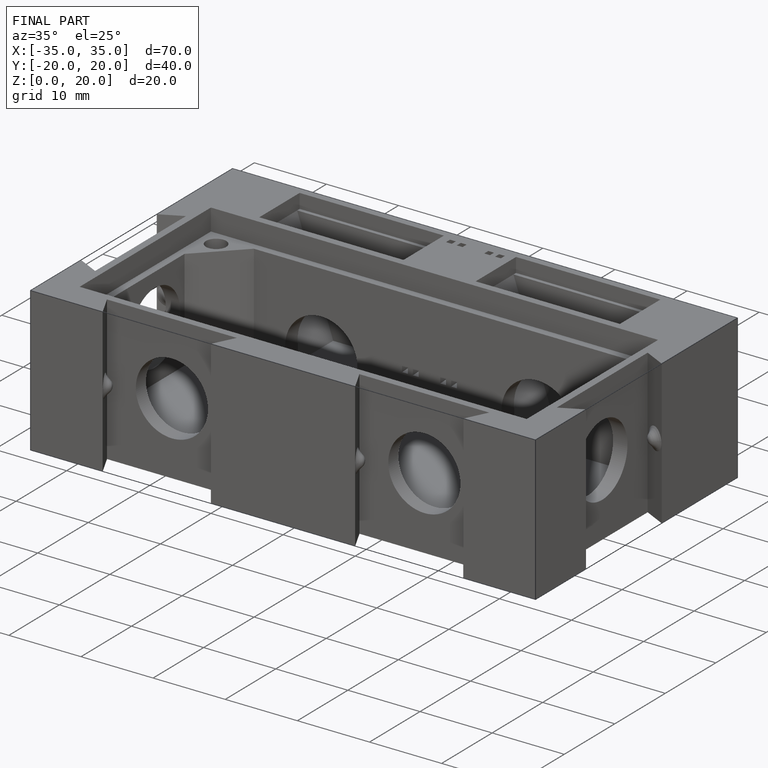
[diagram: finished part — iso view with bounding-box wireframe]
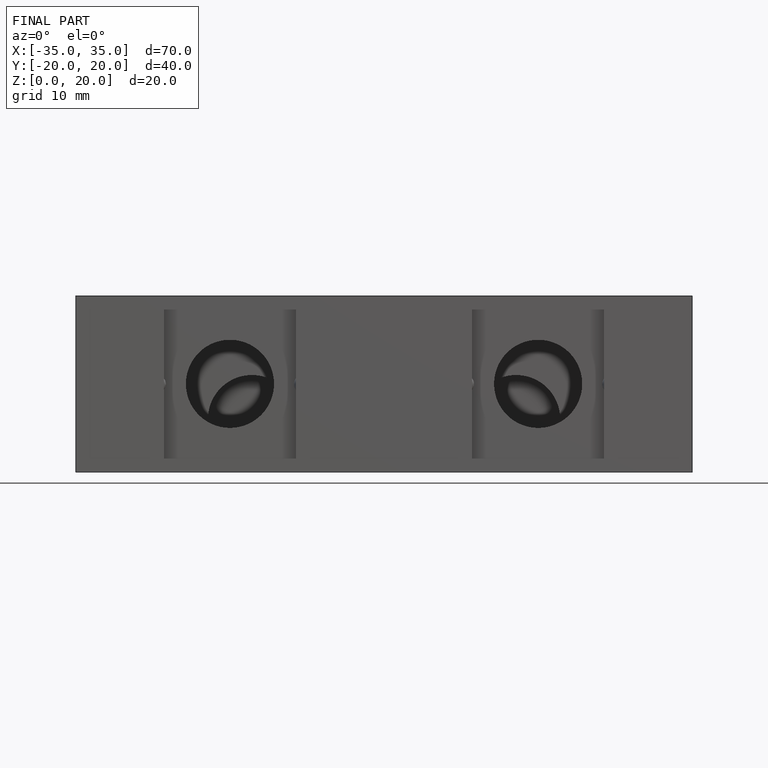
[diagram: finished part — front view with bounding-box wireframe]
